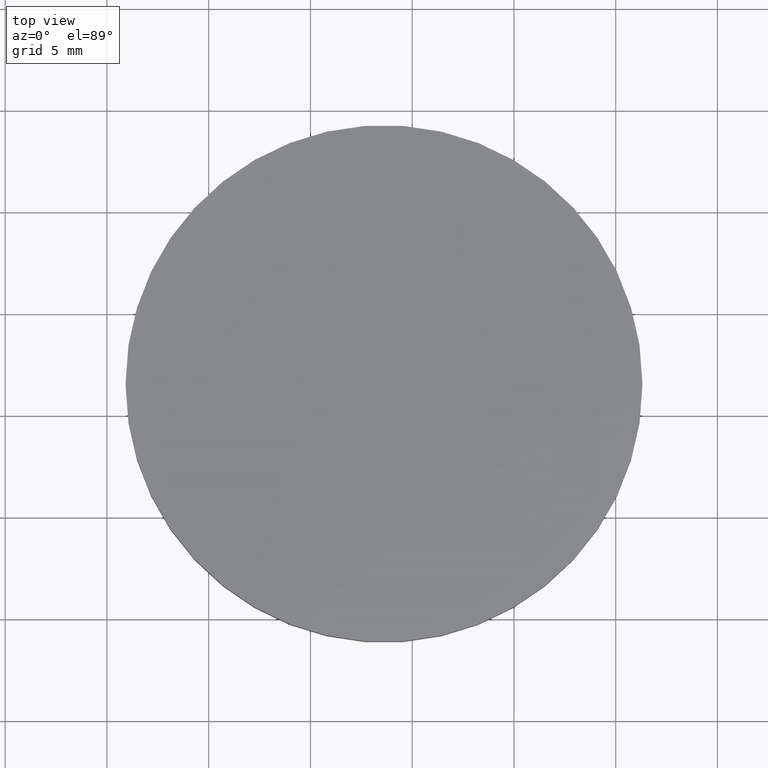
[diagram: clean part render]
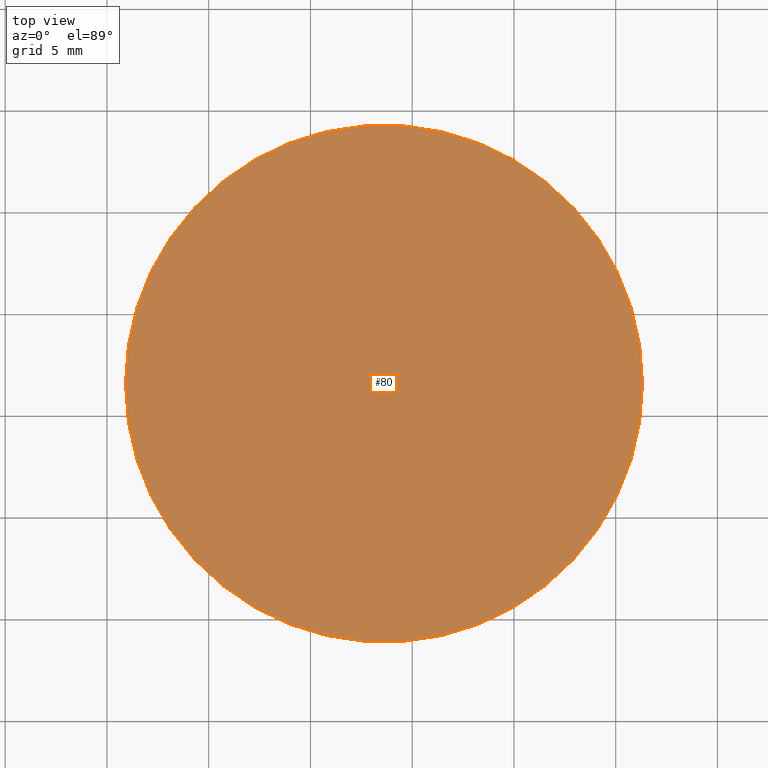
[diagram: same view with one face highlighted and labeled with its STEP entity id]
A machine part, top view. The second image highlights one B-rep face of the part: STEP entity #80.
In plain terms, the highlighted planar face has unit normal (0, 0, 1).
Its self-contained STEP definition (entity closure, byte-faithful):
#5 = CARTESIAN_POINT ( 'NONE',  ( 108.6149839422837000, 61.56324183452659300, 2.299999999999999800 ) ) ;
#6 = DIRECTION ( 'NONE',  ( 0.0000000000000000000, 0.0000000000000000000, 1.000000000000000000 ) ) ;
#7 = PLANE ( 'NONE',  #90 ) ;
#11 = EDGE_CURVE ( 'NONE', #127, #26, #135, .T. ) ;
#14 = AXIS2_PLACEMENT_3D ( 'NONE', #38, #6, #82 ) ;
#16 = CARTESIAN_POINT ( 'NONE',  ( 95.91498394228369800, 61.56324183452659300, 2.299999999999999800 ) ) ;
#17 = CARTESIAN_POINT ( 'NONE',  ( 108.6149839422837000, 61.56324183452659300, 2.299999999999999800 ) ) ;
#26 = VERTEX_POINT ( 'NONE', #16 ) ;
#31 = DIRECTION ( 'NONE',  ( 1.000000000000000000, 0.0000000000000000000, -0.0000000000000000000 ) ) ;
#38 = CARTESIAN_POINT ( 'NONE',  ( 108.6149839422837000, 61.56324183452659300, 2.299999999999999800 ) ) ;
#46 = EDGE_LOOP ( 'NONE', ( #107, #59 ) ) ;
#48 = AXIS2_PLACEMENT_3D ( 'NONE', #5, #124, #86 ) ;
#59 = ORIENTED_EDGE ( 'NONE', *, *, #11, .T. ) ;
#68 = CIRCLE ( 'NONE', #14, 12.70000000000000300 ) ;
#80 = ADVANCED_FACE ( 'NONE', ( #117 ), #7, .T. ) ;
#82 = DIRECTION ( 'NONE',  ( 1.000000000000000000, 0.0000000000000000000, 0.0000000000000000000 ) ) ;
#86 = DIRECTION ( 'NONE',  ( 1.000000000000000000, 0.0000000000000000000, 0.0000000000000000000 ) ) ;
#90 = AXIS2_PLACEMENT_3D ( 'NONE', #17, #95, #31 ) ;
#95 = DIRECTION ( 'NONE',  ( 0.0000000000000000000, 0.0000000000000000000, 1.000000000000000000 ) ) ;
#107 = ORIENTED_EDGE ( 'NONE', *, *, #134, .T. ) ;
#117 = FACE_OUTER_BOUND ( 'NONE', #46, .T. ) ;
#124 = DIRECTION ( 'NONE',  ( 0.0000000000000000000, 0.0000000000000000000, 1.000000000000000000 ) ) ;
#125 = CARTESIAN_POINT ( 'NONE',  ( 121.3149839422837000, 61.56324183452659300, 2.299999999999999800 ) ) ;
#127 = VERTEX_POINT ( 'NONE', #125 ) ;
#134 = EDGE_CURVE ( 'NONE', #26, #127, #68, .T. ) ;
#135 = CIRCLE ( 'NONE', #48, 12.70000000000000300 ) ;